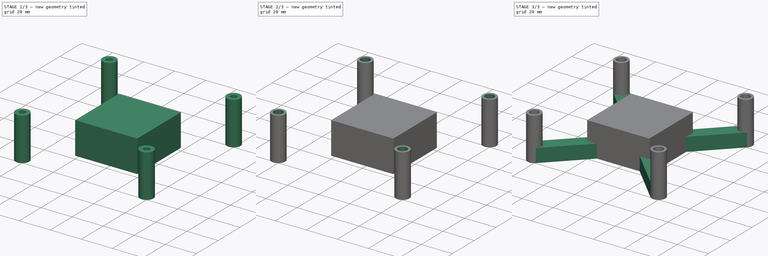
[diagram: build sequence overview — one tinted view per stage of 3, left to right]
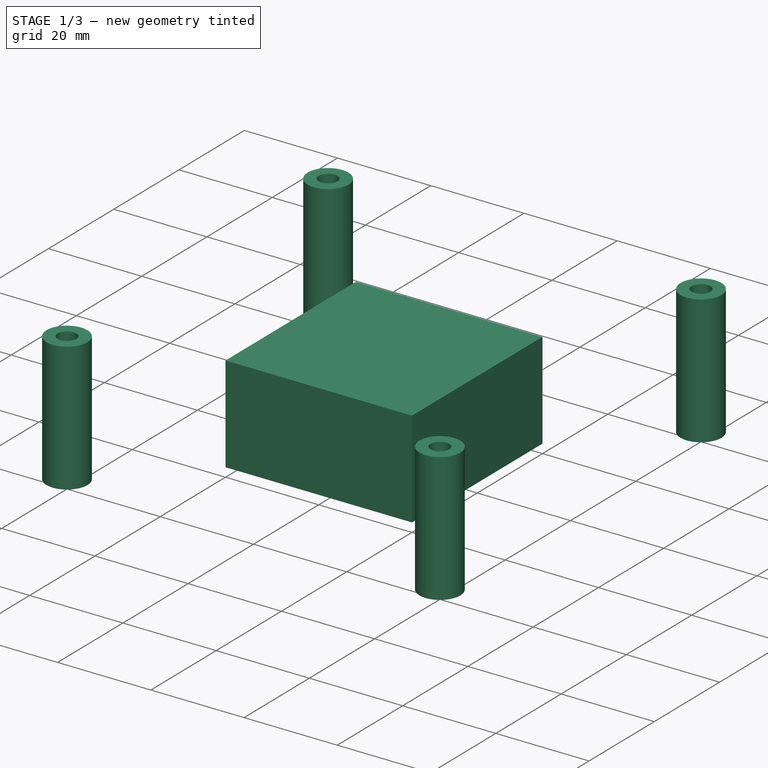
[diagram: stage 1 of 3 — iso view after this stage's code; geometry added in this stage tinted green]
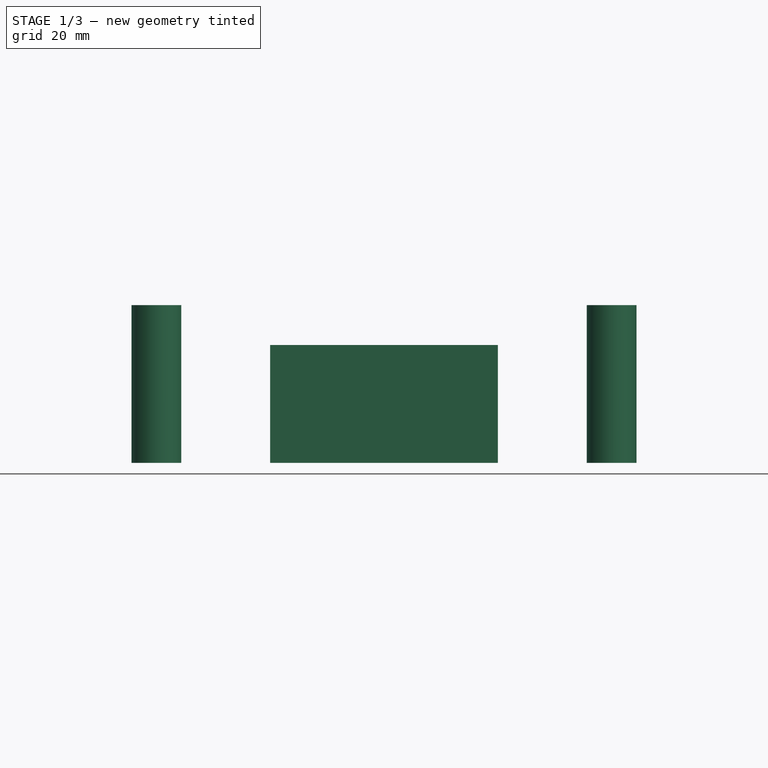
[diagram: stage 1 of 3 — front view after this stage's code; geometry added in this stage tinted green]
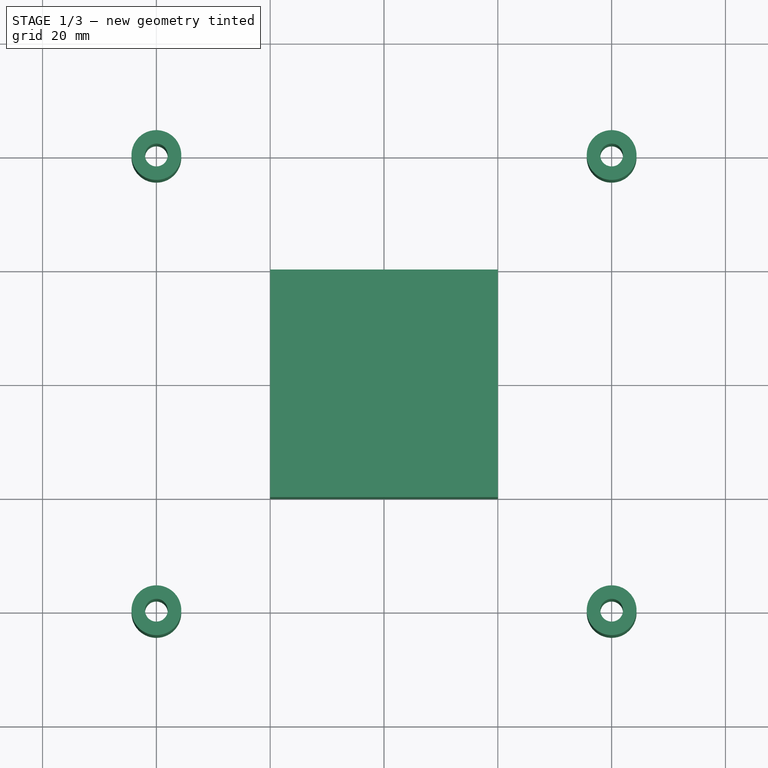
[diagram: stage 1 of 3 — top view after this stage's code; geometry added in this stage tinted green]
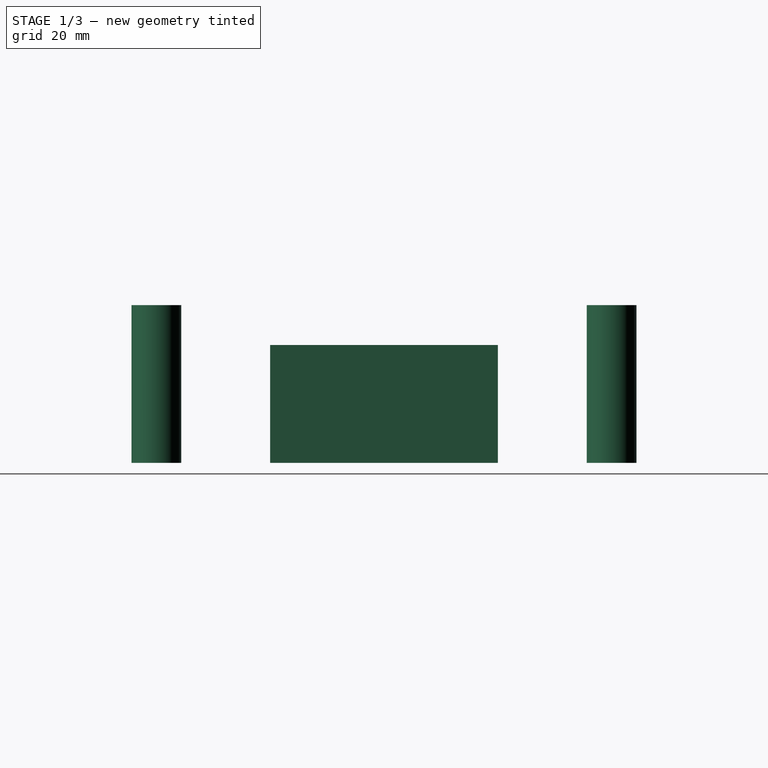
[diagram: stage 1 of 3 — right view after this stage's code; geometry added in this stage tinted green]
FCSTD DOCUMENT  (FreeCAD 2023.131R26244 +5365 (Git))
Label: LAG2011 Water Block
License: All rights reserved
LicenseURL: http://en.wikipedia.org/wiki/All_rights_reserved
objects: Sketcher::SketchObject×6, PartDesign::Pad×3, Spreadsheet::Sheet×1, PartDesign::Pocket×1, PartDesign::SubtractivePipe×1, PartDesign::Body×1
note: 28 computed .brp shape members not serialized (recipe doc carries the construction recipe); baked Part::Feature solids carry a one-line shape summary decoded from their .brp

FEATURE [Spreadsheet::Sheet] Spreadsheet  label="Parameters"
  PythonMode = false
  ShowCells = 0
  TreeRank = 1
  cells = A2=Miscellaneous; A3=Wall Thickness; B3(Wall_Thickness)=1.5; A4=Water Channel Diameter; B4(Water_Channels_Diameter)=12.7; A6=Waterblock Fittings; A7=Inner Diameter; B7(Fitting_Inner_Diameter)=12.7; A8=Outer Diameter; B8(Fitting_Outer_Diameter)=19.05; A10=Mounting Holes; A11=Top-to-Bottom Spacing; B11(Mounting_Holes_Vertical_Spacing)=80; A12=Left-to-Right Spacing; B12(Mounting_Holes_Horizontal_Spacing)=80; A13=Mounting Hole Diameter; B13(Mounting_Hole_Diameter)=5.75; A14=Mounting Hole Depth; B14(Mounting_Hole_Depth)=3.5; A15=Screw Hole Diameter; B15(Screw_Hole_Diameter)=4; C15=M4 bolts; A16=Foot Diameter; B16(Foot_Diameter)==B13 + 2 * B3; C16=Calculated, Mounting Hole Diameter + 2 * Wall Thickness; A17=Foot Length; B17(Foot_Height)==B28 + B20; C17=Calculated; A19=Water Block Body; A20=Height Above Mounting Holes; B20(Water_Block_Height_Above_Mounting_Holes)=7; C20=The distance between the top of the mounting hole in the motherboard and the top of the mounted CPU.; A21=Width; B21(Water_Block_Width)=40; C21=The width of the water block.; A22=Length; B22(Water_Block_Length)=40; C22=The length of the water block.; A23=Base Thickness; B23(Water_Block_Base_Thickness)=4; C23=The thickness between the bottom of the water block and the water channels. (4mm is ideal); A24=Top Thickness; B24(Water_Block_Top_Thickness)=4; C24=The thickness between the water channels and the top of the water block.; A25=Corner Radius; B25(Water_Block_Corner_Radius)=4; A26=Top Fillet; B26(Water_Block_Top_Fillet)=2; A27=Bottom Fillet; B27(Water_Block_Bottom_Fillet)=0.5; A28=Total Thickness; B28(Water_Block_Total_Thickness)==Water_Block_Base_Thickness + Water_Block_Top_Thickness + Water_Channels_Diameter; C28=Calculated; A30=Legs; A31=Total Length; B31(Leg_Length)==sqrt(pow(B11, 2) + pow(B12, 2)); C31=Calculated; A32=Angle; B32(Leg_Angle)==asin(B11 / B31); C32=Calculated
FEATURE [Sketcher::SketchObject] Sketch  label="Water Block Sketch"
  ArcFitTolerance = 1e-06
  AttachmentSupport = -> [XY_Plane]
  ExternalBSplineMaxDegree = 5
  ExternalBSplineTolerance = 0.0001
  FullyConstrained = true
  InternalTolerance = 1e-06
  InvalidShape = false
  MakeInternals = false
  MapMode = 2
  Support = -> [XY_Plane]
  TreeRank = 12
  ValidateShape = true
  expr: Constraints[10] = <<Parameters>>.Water_Block_Width
  expr: Constraints[11] = <<Parameters>>.Water_Block_Width / 2
  expr: Constraints[8] = <<Parameters>>.Water_Block_Length
  expr: Constraints[9] = <<Parameters>>.Water_Block_Length / 2
  sketch-geometry (4):
    g0: LineSegment StartX=-20 StartY=20 StartZ=0 EndX=20 EndY=20 EndZ=0
    g1: LineSegment StartX=20 StartY=20 StartZ=0 EndX=20 EndY=-20 EndZ=0
    g2: LineSegment StartX=20 StartY=-20 StartZ=0 EndX=-20 EndY=-20 EndZ=0
    g3: LineSegment StartX=-20 StartY=-20 StartZ=0 EndX=-20 EndY=20 EndZ=0
  constraints (12):
    c: Coincident(g0,g1)
    c: Coincident(g1,g2)
    c: Coincident(g2,g3)
    c: Coincident(g3,g0)
    c: Horizontal(g0)
    c: Horizontal(g2)
    c: Vertical(g1)
    c: Vertical(g3)
    c: Distance(g0,g1) = 40
    c: DistanceY(g-1,g0) = 20
    c: Distance(g2,g1) = 40
    c: DistanceX(g-1,g1) = 20
FEATURE [PartDesign::Pad] Pad  label="Water Block"
  AddSubType = 0
  AlongSketchNormal = false
  AutoTaperInnerAngle = true
  CheckUpToFaceLimits = true
  ClaimChildren = false
  Direction = (0,0,1)
  Fit = 0
  FitJoin = 0
  InnerFit = 0
  InnerFitJoin = 0
  InvalidShape = false
  Length = 20.7
  Length2 = 100
  Linearize = true
  NewSolid = false
  Profile = -> Sketch
  Suppress = false
  TaperInnerAngle = 0
  TaperInnerAngleRev = 0
  TreeRank = 13
  Type = 0
  ValidateShape = true
  _ProfileBasedVersion = 1
  expr: Length = <<Parameters>>.Water_Block_Total_Thickness
FEATURE [Sketcher::SketchObject] Sketch001  label="Feet Sketch"
  ArcFitTolerance = 1e-06
  AttachmentSupport = -> [XY_Plane]
  ExternalBSplineMaxDegree = 5
  ExternalBSplineTolerance = 0.0001
  FullyConstrained = true
  InternalTolerance = 1e-06
  InvalidShape = false
  MakeInternals = false
  MapMode = 5
  Support = -> [XY_Plane]
  TreeRank = 14
  ValidateShape = true
  expr: Constraints[10] = <<Parameters>>.Mounting_Holes_Horizontal_Spacing
  expr: Constraints[11] = <<Parameters>>.Mounting_Holes_Horizontal_Spacing / 2
  expr: Constraints[19] = <<Parameters>>.Foot_Diameter
  expr: Constraints[27] = <<Parameters>>.Screw_Hole_Diameter
  expr: Constraints[8] = <<Parameters>>.Mounting_Holes_Vertical_Spacing
  expr: Constraints[9] = <<Parameters>>.Mounting_Holes_Vertical_Spacing / 2
  sketch-geometry (12):
    g0: LineSegment [constr] StartX=-40 StartY=40 StartZ=0 EndX=40 EndY=40 EndZ=0
    g1: LineSegment [constr] StartX=40 StartY=40 StartZ=0 EndX=40 EndY=-40 EndZ=0
    g2: LineSegment [constr] StartX=40 StartY=-40 StartZ=0 EndX=-40 EndY=-40 EndZ=0
    g3: LineSegment [constr] StartX=-40 StartY=-40 StartZ=0 EndX=-40 EndY=40 EndZ=0
    g4: Circle CenterX=-40 CenterY=40 CenterZ=0 NormalX=0 NormalY=0 NormalZ=1 AngleXU=0 Radius=4.375
    g5: Circle CenterX=40 CenterY=40 CenterZ=0 NormalX=0 NormalY=0 NormalZ=1 AngleXU=0 Radius=4.375
    g6: Circle CenterX=40 CenterY=-40 CenterZ=0 NormalX=0 NormalY=0 NormalZ=1 AngleXU=0 Radius=4.375
    g7: Circle CenterX=-40 CenterY=-40 CenterZ=0 NormalX=0 NormalY=0 NormalZ=1 AngleXU=0 Radius=4.375
    g8: Circle CenterX=-40 CenterY=40 CenterZ=0 NormalX=0 NormalY=0 NormalZ=1 AngleXU=0 Radius=2
    g9: Circle CenterX=40 CenterY=40 CenterZ=0 NormalX=0 NormalY=0 NormalZ=1 AngleXU=0 Radius=2
    g10: Circle CenterX=40 CenterY=-40 CenterZ=0 NormalX=0 NormalY=0 NormalZ=1 AngleXU=0 Radius=2
    g11: Circle CenterX=-40 CenterY=-40 CenterZ=0 NormalX=0 NormalY=0 NormalZ=1 AngleXU=0 Radius=2
  constraints (28):
    c: Coincident(g0,g1)
    c: Coincident(g1,g2)
    c: Coincident(g2,g3)
    c: Coincident(g3,g0)
    c: Horizontal(g0)
    c: Horizontal(g2)
    c: Vertical(g1)
    c: Vertical(g3)
    c: Distance(g0,g1) = 80
    c: DistanceY(g-1,g0) = 40
    c: Distance(g2,g1) = 80
    c: DistanceX(g-1,g1) = 40
    c: Coincident(g4,g0)
    c: Coincident(g5,g0)
    c: Coincident(g6,g1)
    c: Coincident(g7,g2)
    c: Equal(g4,g5)
    c: Equal(g4,g6)
    c: Equal(g4,g7)
    c: Diameter(g4) = 8.75
    c: Coincident(g8,g4)
    c: Coincident(g9,g0)
    c: Coincident(g10,g1)
    c: Coincident(g11,g2)
    c: Equal(g8,g9)
    c: Equal(g8,g10)
    c: Equal(g8,g11)
    c: Diameter(g8) = 4
FEATURE [PartDesign::Pad] Pad001  label="Feet"
  AddSubType = 0
  AlongSketchNormal = false
  AutoTaperInnerAngle = true
  BaseFeature = -> Pad
  CheckUpToFaceLimits = true
  ClaimChildren = false
  Direction = (0,0,1)
  Fit = 0
  FitJoin = 0
  InnerFit = 0
  InnerFitJoin = 0
  InvalidShape = false
  Length = 27.7
  Length2 = 100
  Linearize = true
  NewSolid = false
  Profile = -> Sketch001
  Suppress = false
  TaperInnerAngle = 0
  TaperInnerAngleRev = 0
  TreeRank = 15
  Type = 0
  ValidateShape = true
  _ProfileBasedVersion = 1
  expr: Length = <<Parameters>>.Foot_Height
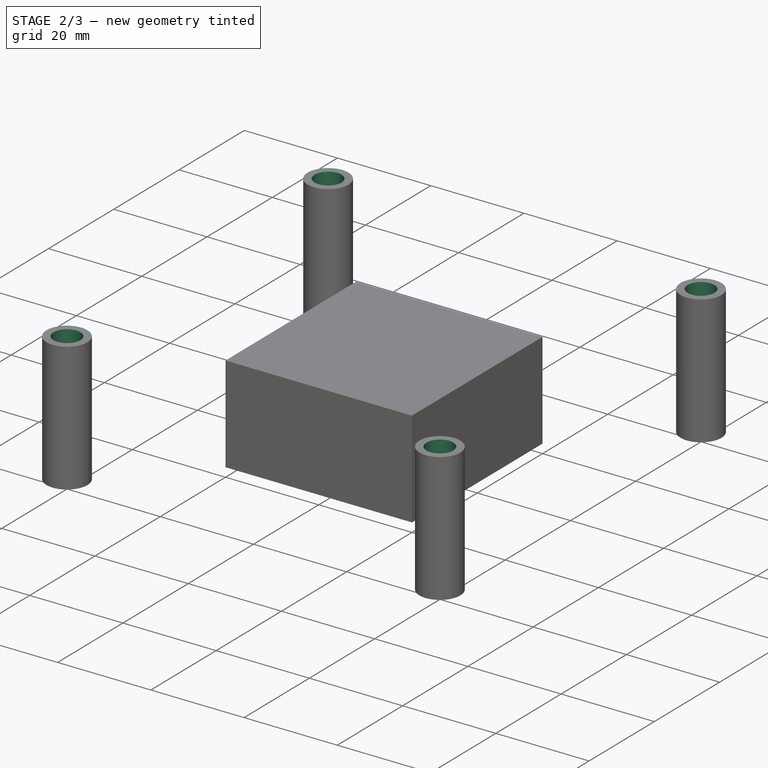
[diagram: stage 2 of 3 — iso view after this stage's code; geometry added in this stage tinted green]
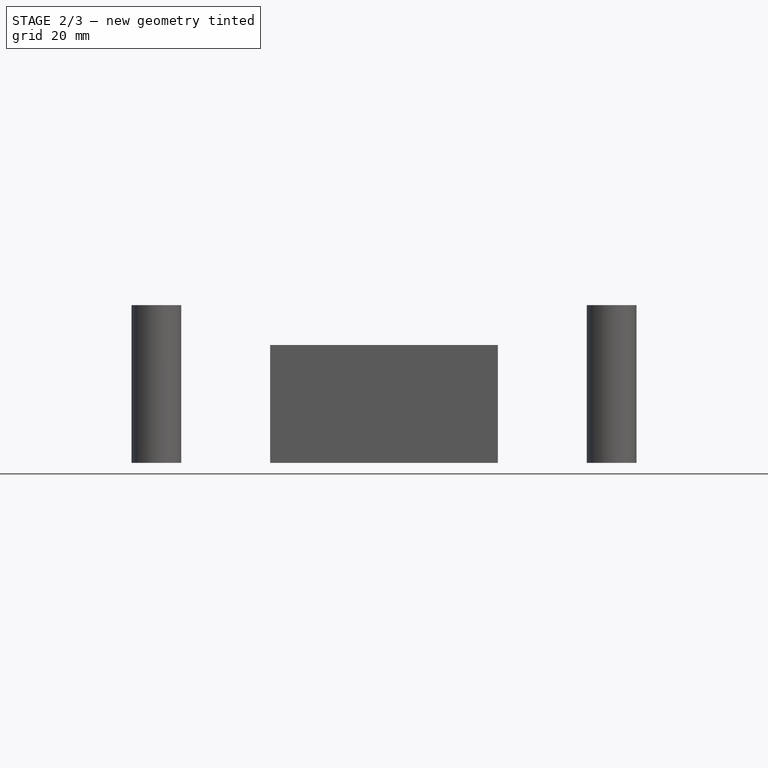
[diagram: stage 2 of 3 — front view after this stage's code; geometry added in this stage tinted green]
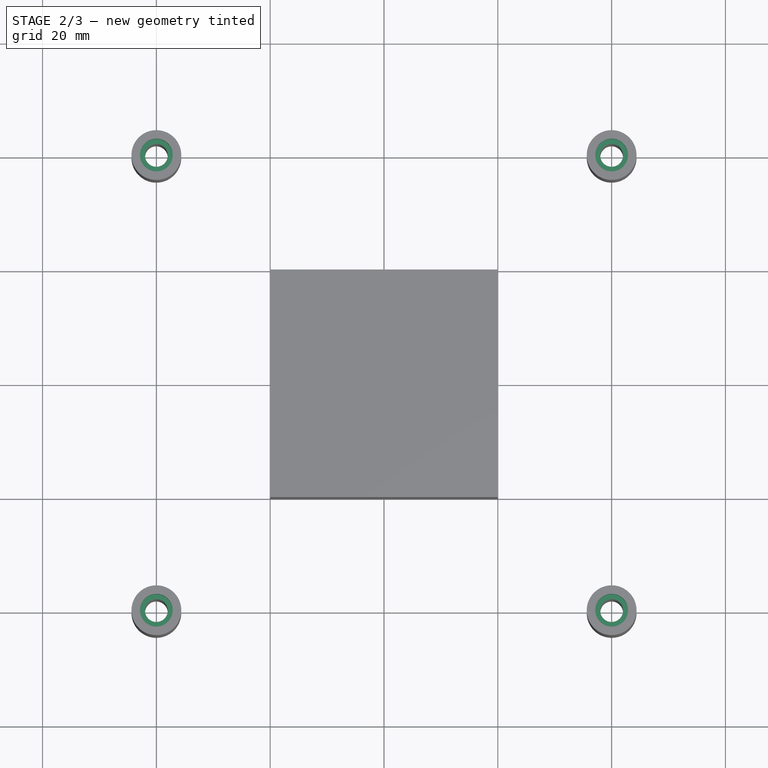
[diagram: stage 2 of 3 — top view after this stage's code; geometry added in this stage tinted green]
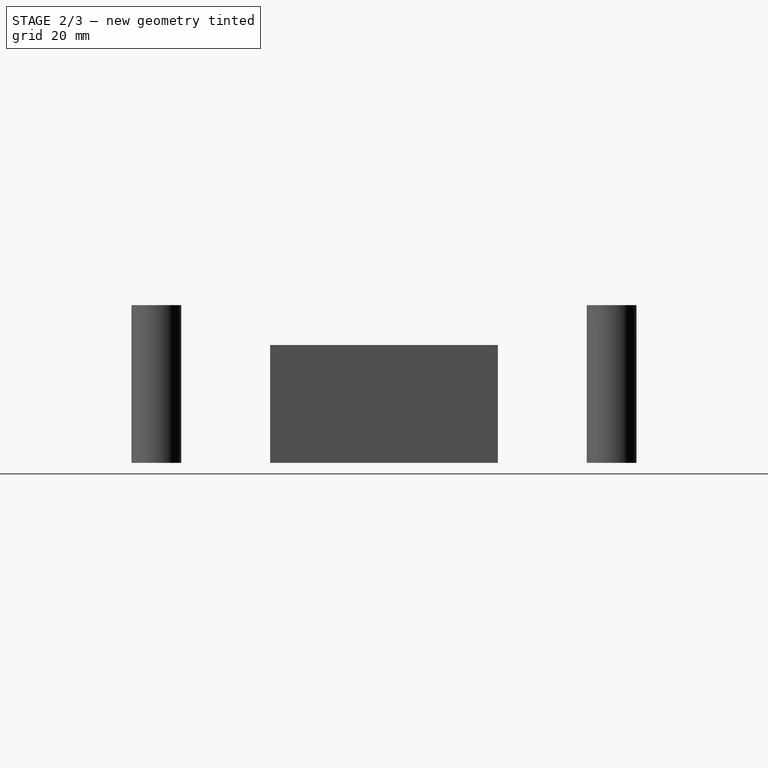
[diagram: stage 2 of 3 — right view after this stage's code; geometry added in this stage tinted green]
FEATURE [Sketcher::SketchObject] Sketch002
  ArcFitTolerance = 1e-06
  AttachmentSupport = -> [Pad001]
  ExternalBSplineMaxDegree = 5
  ExternalBSplineTolerance = 0.0001
  FullyConstrained = true
  InternalTolerance = 1e-06
  InvalidShape = false
  MakeInternals = false
  MapMode = 5
  Placement = pos=(0,0,27.7) rot=(0,0,1;0rad)
  Support = -> [Pad001]
  TreeRank = 16
  ValidateShape = true
  expr: Constraints[10] = <<Parameters>>.Mounting_Holes_Horizontal_Spacing
  expr: Constraints[11] = <<Parameters>>.Mounting_Holes_Horizontal_Spacing / 2
  expr: Constraints[19] = <<Parameters>>.Mounting_Hole_Diameter
  expr: Constraints[8] = <<Parameters>>.Mounting_Holes_Vertical_Spacing
  expr: Constraints[9] = <<Parameters>>.Mounting_Holes_Vertical_Spacing / 2
  sketch-geometry (8):
    g0: LineSegment [constr] StartX=-40 StartY=40 StartZ=0 EndX=40 EndY=40 EndZ=0
    g1: LineSegment [constr] StartX=40 StartY=40 StartZ=0 EndX=40 EndY=-40 EndZ=0
    g2: LineSegment [constr] StartX=40 StartY=-40 StartZ=0 EndX=-40 EndY=-40 EndZ=0
    g3: LineSegment [constr] StartX=-40 StartY=-40 StartZ=0 EndX=-40 EndY=40 EndZ=0
    g4: Circle CenterX=-40 CenterY=40 CenterZ=0 NormalX=0 NormalY=0 NormalZ=1 AngleXU=0 Radius=2.875
    g5: Circle CenterX=40 CenterY=40 CenterZ=0 NormalX=0 NormalY=0 NormalZ=1 AngleXU=0 Radius=2.875
    g6: Circle CenterX=40 CenterY=-40 CenterZ=0 NormalX=0 NormalY=0 NormalZ=1 AngleXU=0 Radius=2.875
    g7: Circle CenterX=-40 CenterY=-40 CenterZ=0 NormalX=0 NormalY=0 NormalZ=1 AngleXU=0 Radius=2.875
  constraints (20):
    c: Coincident(g0,g1)
    c: Coincident(g1,g2)
    c: Coincident(g2,g3)
    c: Coincident(g3,g0)
    c: Horizontal(g0)
    c: Horizontal(g2)
    c: Vertical(g1)
    c: Vertical(g3)
    c: Distance(g0,g1) = 80
    c: DistanceY(g-1,g0) = 40
    c: Distance(g2,g1) = 80
    c: DistanceX(g-1,g1) = 40
    c: Coincident(g4,g0)
    c: Coincident(g5,g0)
    c: Coincident(g6,g1)
    c: Coincident(g7,g2)
    c: Equal(g4,g5)
    c: Equal(g4,g6)
    c: Equal(g4,g7)
    c: Diameter(g4) = 5.75
FEATURE [PartDesign::Pocket] Pocket  label="Mounting Holes"
  AddSubType = 1
  AutoTaperInnerAngle = true
  BaseFeature = -> Pad001
  CheckUpToFaceLimits = true
  ClaimChildren = false
  Fit = 0
  FitJoin = 0
  InnerFit = 0
  InnerFitJoin = 0
  InvalidShape = false
  Length = 3.5
  Length2 = 100
  Linearize = true
  NewSolid = false
  Profile = -> Sketch002
  Suppress = false
  TaperInnerAngle = 0
  TaperInnerAngleRev = 0
  TreeRank = 17
  Type = 0
  ValidateShape = true
  _ProfileBasedVersion = 1
  _Version = 1
  expr: Length = <<Parameters>>.Mounting_Hole_Depth
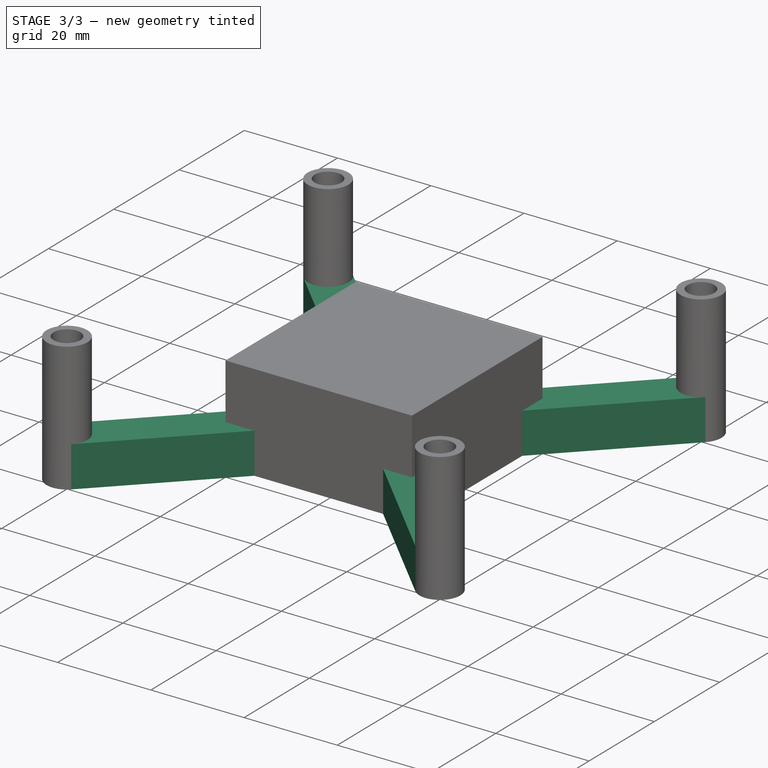
[diagram: stage 3 of 3 — iso view after this stage's code; geometry added in this stage tinted green]
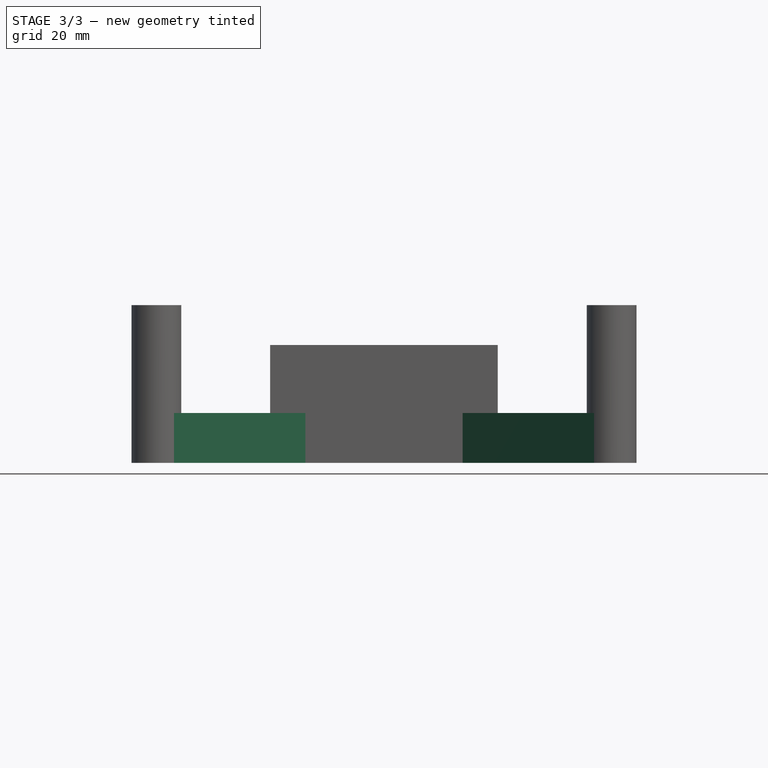
[diagram: stage 3 of 3 — front view after this stage's code; geometry added in this stage tinted green]
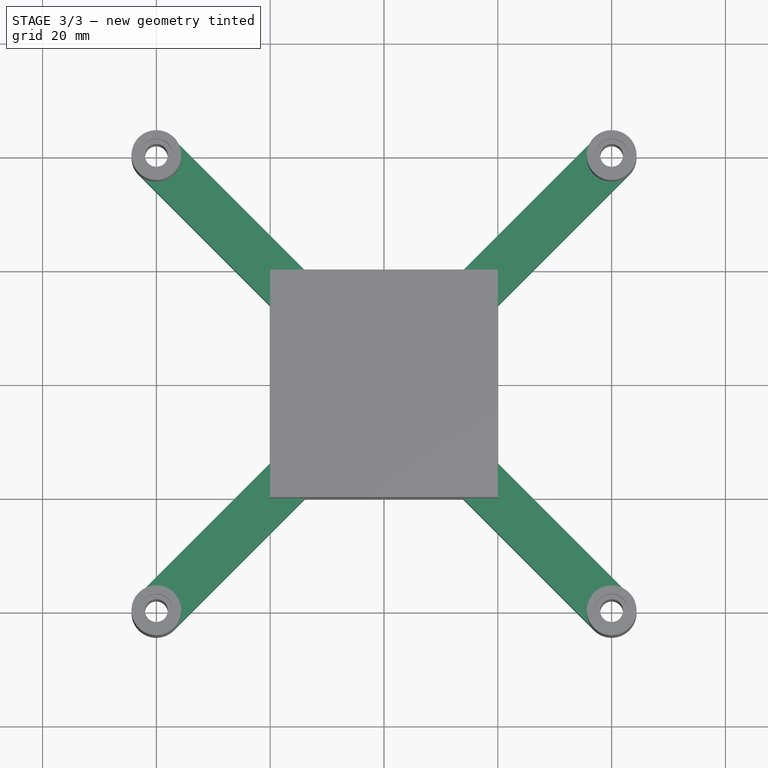
[diagram: stage 3 of 3 — top view after this stage's code; geometry added in this stage tinted green]
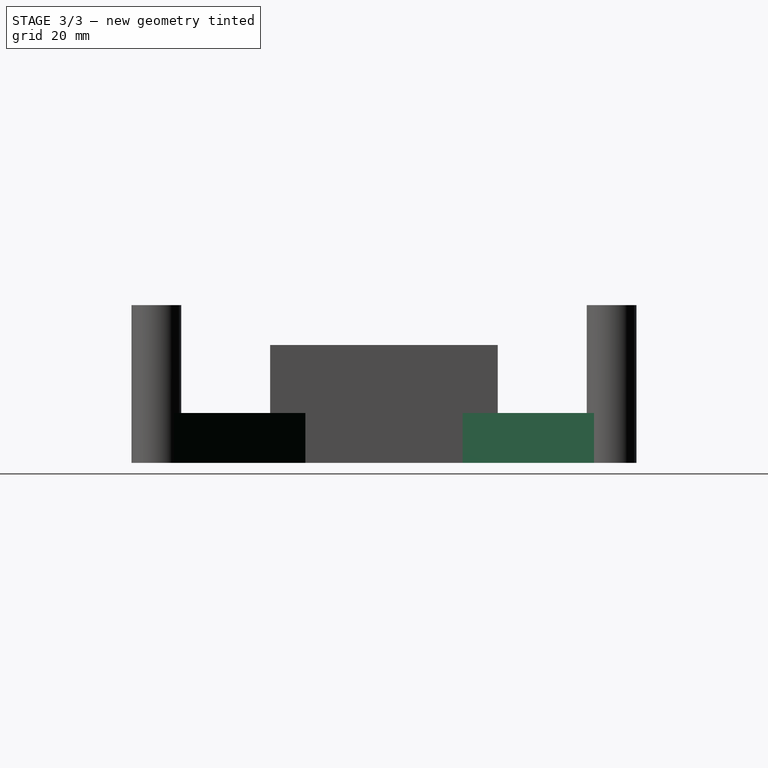
[diagram: stage 3 of 3 — right view after this stage's code; geometry added in this stage tinted green]
FEATURE [Sketcher::SketchObject] Sketch003  label="Legs Sketch"
  ArcFitTolerance = 1e-06
  AttachmentSupport = -> [XY_Plane]
  ExternalBSplineMaxDegree = 5
  ExternalBSplineTolerance = 0.0001
  FullyConstrained = true
  InternalTolerance = 1e-06
  InvalidShape = false
  MakeInternals = false
  MapMode = 5
  Support = -> [XY_Plane]
  TreeRank = 18
  ValidateShape = true
  expr: Constraints[10] = <<Parameters>>.Mounting_Holes_Horizontal_Spacing
  expr: Constraints[11] = <<Parameters>>.Mounting_Holes_Horizontal_Spacing / 2
  expr: Constraints[16] = <<Parameters>>.Foot_Diameter
  expr: Constraints[22] = <<Parameters>>.Foot_Diameter
  expr: Constraints[24] = <<Parameters>>.Foot_Diameter
  expr: Constraints[8] = <<Parameters>>.Mounting_Holes_Vertical_Spacing
  expr: Constraints[9] = <<Parameters>>.Mounting_Holes_Vertical_Spacing / 2
  sketch-geometry (12):
    g0: LineSegment [constr] StartX=-40 StartY=40 StartZ=0 EndX=40 EndY=40 EndZ=0
    g1: LineSegment [constr] StartX=40 StartY=40 StartZ=0 EndX=40 EndY=-40 EndZ=0
    g2: LineSegment [constr] StartX=40 StartY=-40 StartZ=0 EndX=-40 EndY=-40 EndZ=0
    g3: LineSegment [constr] StartX=-40 StartY=-40 StartZ=0 EndX=-40 EndY=40 EndZ=0
    g4: ArcOfCircle CenterX=-40 CenterY=40 CenterZ=0 NormalX=0 NormalY=0 NormalZ=1 AngleXU=0 Radius=4.375 StartAngle=3.92699 EndAngle=7.06858
    g5: ArcOfCircle CenterX=40 CenterY=40 CenterZ=0 NormalX=0 NormalY=0 NormalZ=1 AngleXU=0 Radius=4.375 StartAngle=2.35619 EndAngle=5.49779
    g6: ArcOfCircle CenterX=40 CenterY=-40 CenterZ=0 NormalX=0 NormalY=0 NormalZ=1 AngleXU=0 Radius=4.375 StartAngle=0.785398 EndAngle=3.92699
    g7: ArcOfCircle CenterX=-40 CenterY=-40 CenterZ=0 NormalX=0 NormalY=0 NormalZ=1 AngleXU=0 Radius=4.375 StartAngle=5.49779 EndAngle=8.63938
    g8: LineSegment StartX=-36.9064 StartY=43.0936 StartZ=0 EndX=43.0936 EndY=-36.9064 EndZ=0
    g9: LineSegment StartX=-43.0936 StartY=36.9064 StartZ=0 EndX=36.9064 EndY=-43.0936 EndZ=0
    g10: LineSegment StartX=36.9064 StartY=43.0936 StartZ=0 EndX=-43.0936 EndY=-36.9064 EndZ=0
    g11: LineSegment StartX=-36.9064 StartY=-43.0936 StartZ=0 EndX=43.0936 EndY=36.9064 EndZ=0
  constraints (33):
    c: Coincident(g0,g1)
    c: Coincident(g1,g2)
    c: Coincident(g2,g3)
    c: Coincident(g3,g0)
    c: Horizontal(g0)
    c: Horizontal(g2)
    c: Vertical(g1)
    c: Vertical(g3)
    c: Distance(g0,g1) = 80
    c: DistanceY(g-1,g0) = 40
    c: Distance(g2,g1) = 80
    c: DistanceX(g-1,g1) = 40
    c: Coincident(g4,g0)
    c: Coincident(g5,g0)
    c: Coincident(g6,g1)
    c: Coincident(g7,g2)
    c: Diameter(g4) = 8.75
    c: Equal(g4,g5)
    c: Equal(g4,g7)
    c: Equal(g4,g6)
    c: Equal(g8,g9)
    c: Parallel(g8,g9)
    c: Distance(g9,g8) = 8.75
    c: Equal(g10,g11)
    c: Distance(g10,g11) = 8.75
    c: Coincident(g4,g8)
    c: Coincident(g4,g9)
    c: Coincident(g5,g11)
    c: Tangent(g5,g10) = -1.5708
    c: Coincident(g7,g10)
    c: Tangent(g7,g11) = -1.5708
    c: Tangent(g6,g9) = -1.5708
    c: Coincident(g6,g8)
FEATURE [PartDesign::Pad] Pad002  label="Legs"
  AddSubType = 0
  AlongSketchNormal = false
  AutoTaperInnerAngle = true
  BaseFeature = -> Pocket
  CheckUpToFaceLimits = true
  ClaimChildren = false
  Direction = (0,0,1)
  Fit = 0
  FitJoin = 0
  InnerFit = 0
  InnerFitJoin = 0
  InvalidShape = false
  Length = 8.75
  Length2 = 100
  Linearize = true
  NewSolid = false
  Profile = -> Sketch003
  Suppress = false
  TaperInnerAngle = 0
  TaperInnerAngleRev = 0
  TreeRank = 19
  Type = 0
  ValidateShape = true
  _ProfileBasedVersion = 1
  expr: Length = min(<<Parameters>>.Foot_Diameter, <<Parameters>>.Water_Block_Total_Thickness)
FEATURE [Sketcher::SketchObject] Sketch004  label="Water Path Ketch"
  ArcFitTolerance = 1e-06
  ExternalBSplineMaxDegree = 5
  ExternalBSplineTolerance = 0.0001
  FullyConstrained = false
  InternalTolerance = 1e-06
  InvalidShape = false
  MakeInternals = false
  MapMode = 5
  Placement = pos=(0,0,12) rot=(0,0,1;0rad)
  TreeRank = 21
  ValidateShape = true
  sketch-geometry (7):
    g0: LineSegment StartX=-24.6046 StartY=0 StartZ=0 EndX=-17.0292 EndY=0 EndZ=0
    g1: LineSegment StartX=0 StartY=17.1692 StartZ=0 EndX=0 EndY=26.8796 EndZ=0
    g2: LineSegment StartX=0 StartY=17.1692 StartZ=0 EndX=7.15583 EndY=10.291 EndZ=0
    g3: LineSegment StartX=-5.83401 StartY=0.056524 StartZ=0 EndX=-17.0292 EndY=0 EndZ=0
    g4: LineSegment StartX=7.15583 StartY=10.291 StartZ=0 EndX=10.6879 EndY=-2.90976 EndZ=0
    g5: LineSegment StartX=-5.83401 StartY=0.056524 StartZ=0 EndX=-1.50406 EndY=-8.997 EndZ=0
    g6: LineSegment StartX=-1.50406 StartY=-8.997 StartZ=0 EndX=10.6879 EndY=-2.90976 EndZ=0
  constraints (10):
    c: Horizontal(g0)
    c: Vertical(g1)
    c: Coincident(g2,g1)
    c: Coincident(g3,g0)
    c: Coincident(g4,g2)
    c: PointOnObject(g0,g-1)
    c: PointOnObject(g1,g-2)
    c: Coincident(g5,g3)
    c: Coincident(g6,g5)
    c: Coincident(g6,g4)
FEATURE [Sketcher::SketchObject] Sketch005  label="Hole Profile"
  ArcFitTolerance = 1e-06
  ExternalBSplineMaxDegree = 5
  ExternalBSplineTolerance = 0.0001
  FullyConstrained = true
  InternalTolerance = 1e-06
  InvalidShape = false
  MakeInternals = false
  MapMode = 5
  Placement = pos=(-20,0,0) rot=(0.57735,-0.57735,-0.57735;2.0944rad)
  TreeRank = 22
  ValidateShape = true
  expr: Constraints[1] = <<Parameters>>.Water_Channels_Diameter
  expr: Constraints[2] = <<Parameters>>.Water_Block_Total_Thickness / 2
  sketch-geometry (1):
    g0: Circle CenterX=0 CenterY=10.35 CenterZ=0 NormalX=0 NormalY=0 NormalZ=1 AngleXU=0 Radius=6.35
  constraints (3):
    c: PointOnObject(g0,g-2)
    c: Diameter(g0) = 12.7
    c: DistanceY(g-1,g0) = 10.35
FEATURE [PartDesign::SubtractivePipe] Pipe  label="Water Path"
  AddSubType = 1
  AuxilleryCurvelinear = true
  AuxillerySpineTangent = false
  BaseFeature = -> Pad002
  Binormal = (0,0,0)
  ClaimChildren = false
  Fit = 0
  FitJoin = 0
  FixShape = 1
  InnerFit = 0
  InnerFitJoin = 0
  InvalidShape = false
  Linearize = true
  Mode = 0
  MoveProfile = false
  NewSolid = false
  Profile = -> Sketch005
  RotateProfile = false
  Spine = -> Sketch004
  SpineTangent = false
  Suppress = false
  Transformation = 0
  Transition = 2
  TreeRank = 23
  ValidateShape = true
  _ProfileBasedVersion = 2
FEATURE [PartDesign::Body] Body
  AutoGroupSolids = false
  ClaimAllChildren = false
  ExportMode = 0
  Group = -> [Sketch,Pad,Sketch001,Pad001,Sketch002,Pocket,Sketch003,Pad002,Sketch004,Sketch005,Pipe]
  InvalidShape = false
  Origin = -> Origin
  Tip = -> Pipe
  TreeRank = 11
  ValidateShape = true
  _ExportChildren = -> [Pad,Pad001,Pocket,Pad002,Pipe]
  _GroupVersion = 1
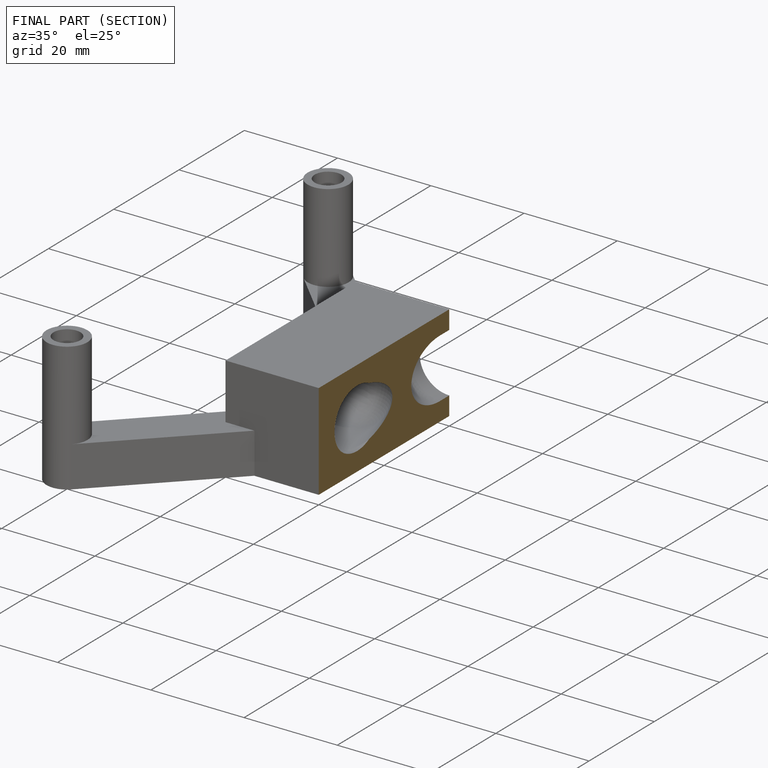
[diagram: finished part — half-section view (interior)]
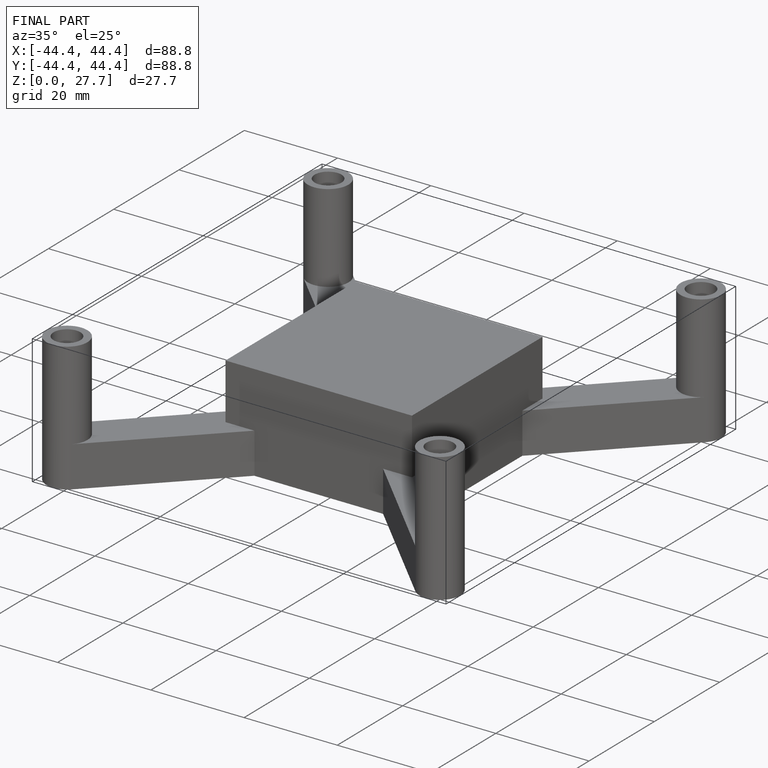
[diagram: finished part — iso view with bounding-box wireframe]
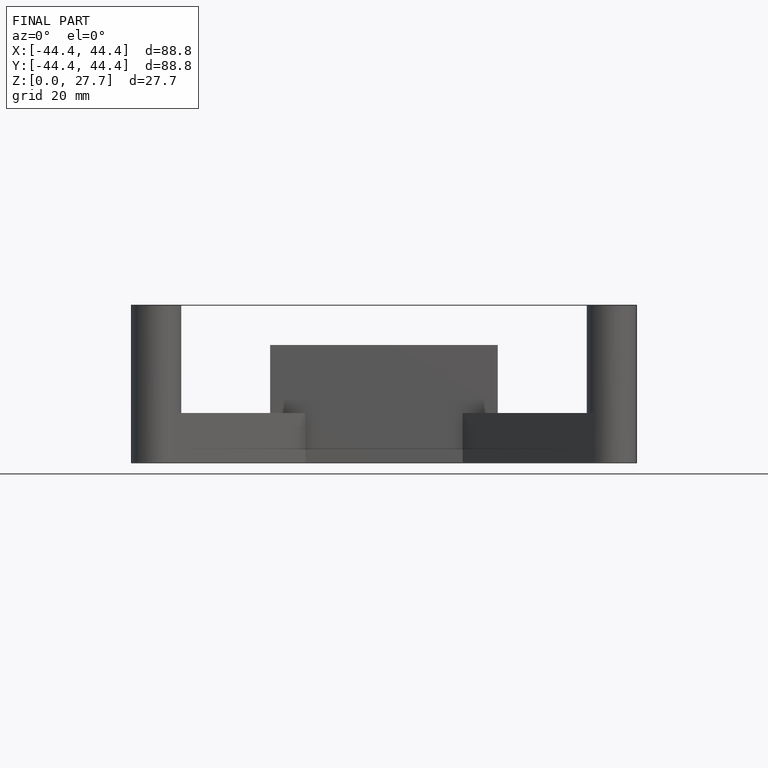
[diagram: finished part — front view with bounding-box wireframe]
